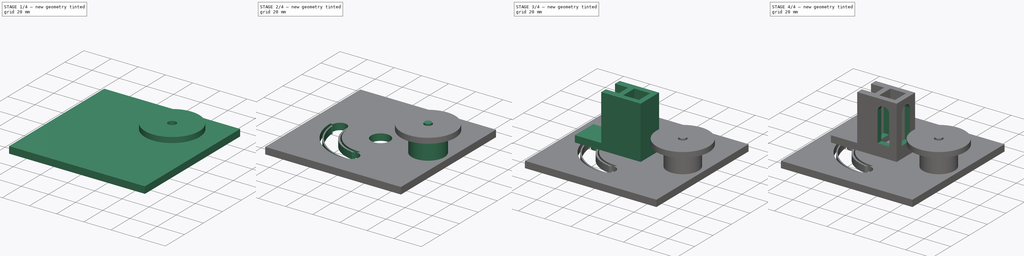
[diagram: build sequence overview — one tinted view per stage of 4, left to right]
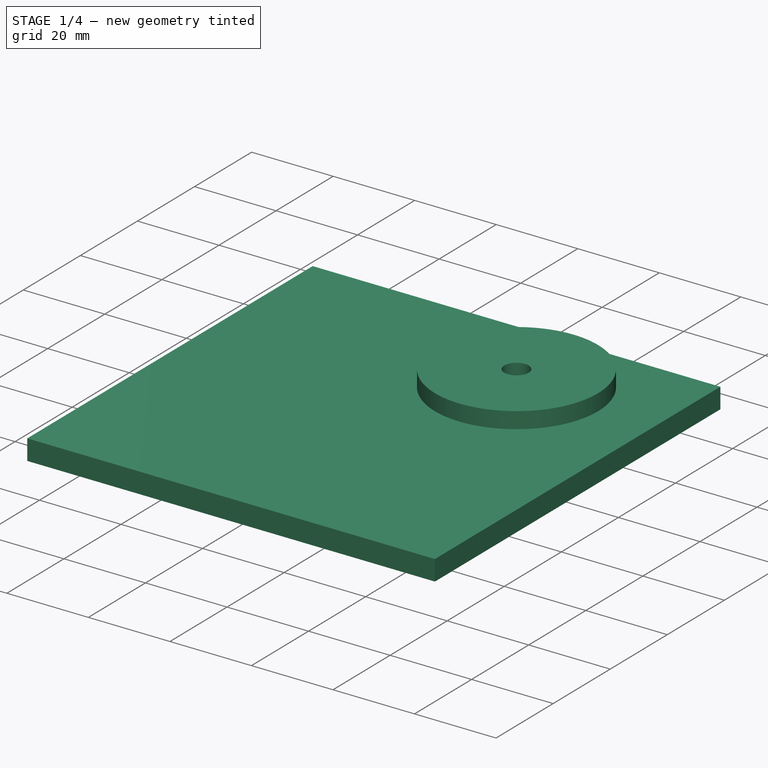
[diagram: stage 1 of 4 — iso view after this stage's code; geometry added in this stage tinted green]
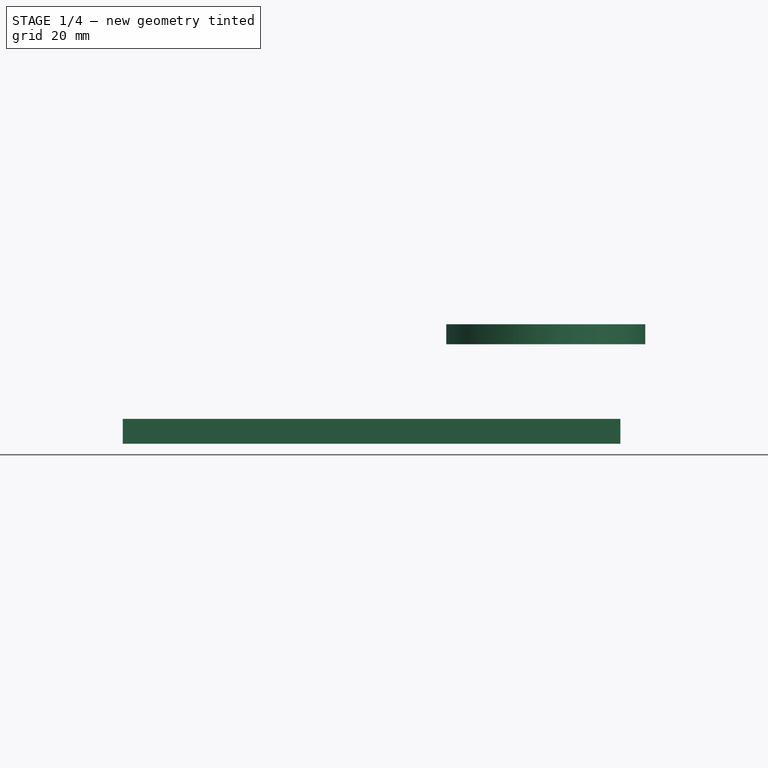
[diagram: stage 1 of 4 — front view after this stage's code; geometry added in this stage tinted green]
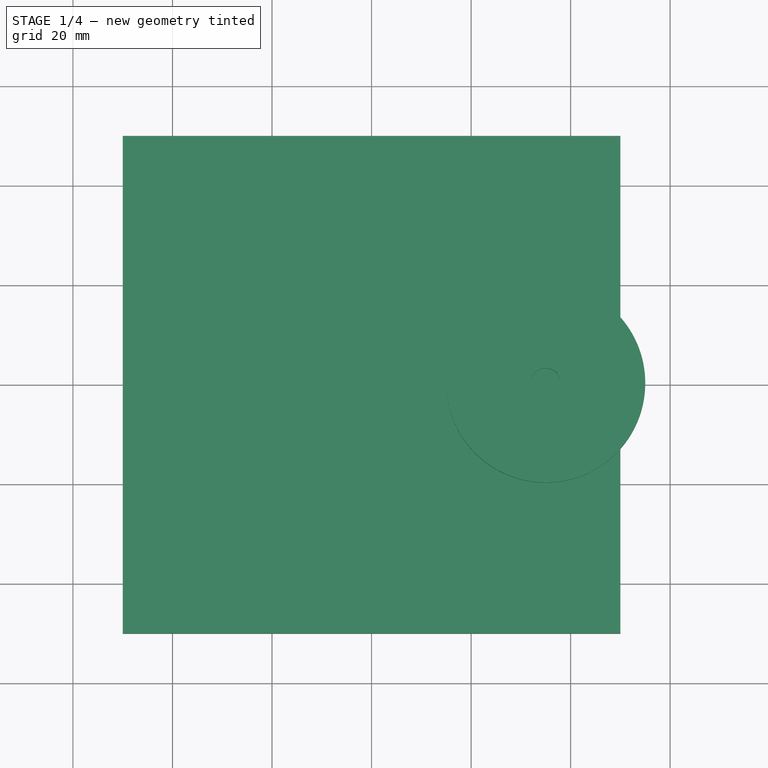
[diagram: stage 1 of 4 — top view after this stage's code; geometry added in this stage tinted green]
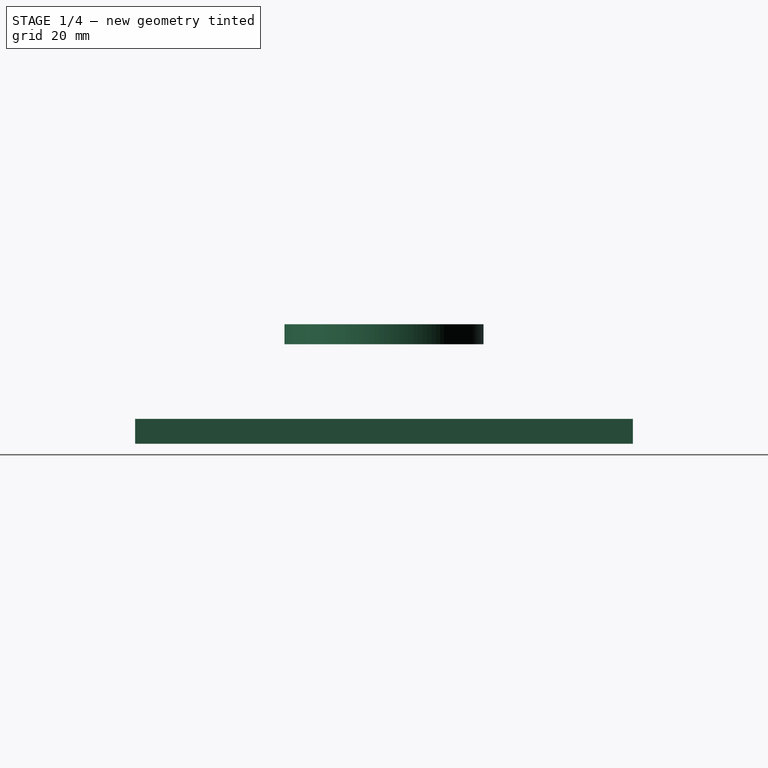
[diagram: stage 1 of 4 — right view after this stage's code; geometry added in this stage tinted green]
FCSTD DOCUMENT  (FreeCAD 0.17R13541 (Git))
Label: Скетч_0.5.2_зацеп
License: All rights reserved
LicenseURL: http://en.wikipedia.org/wiki/All_rights_reserved
objects: Sketcher::SketchObject×11, PartDesign::Pad×7, PartDesign::Pocket×3, PartDesign::Body×3, PartDesign::ShapeBinder×2
note: 36 computed .brp shape members not serialized (recipe doc carries the construction recipe); baked Part::Feature solids carry a one-line shape summary decoded from their .brp

FEATURE [Sketcher::SketchObject] Sketch
  MapMode = 5
  Support = -> [XY_Plane]
  sketch-geometry (4):
    g0: LineSegment StartX=-50 StartY=50 StartZ=0 EndX=50 EndY=50 EndZ=0
    g1: LineSegment StartX=50 StartY=50 StartZ=0 EndX=50 EndY=-50 EndZ=0
    g2: LineSegment StartX=50 StartY=-50 StartZ=0 EndX=-50 EndY=-50 EndZ=0
    g3: LineSegment StartX=-50 StartY=-50 StartZ=0 EndX=-50 EndY=50 EndZ=0
  constraints (12):
    c: Coincident(g0,g1)
    c: Coincident(g1,g2)
    c: Coincident(g2,g3)
    c: Coincident(g3,g0)
    c: Horizontal(g0)
    c: Horizontal(g2)
    c: Vertical(g1)
    c: Vertical(g3)
    c: Symmetric(g1,g2,g-2)
    c: Symmetric(g1,g0,g-1)
    c: DistanceY(g1,g0) = 100
    c: Equal(g1,g2)
FEATURE [PartDesign::Pad] Pad
  Length = 5
  Length2 = 100
  Profile = -> Sketch
  Type = 0
FEATURE [PartDesign::Body] Body  label="PLT"
  Group = -> [Sketch,Pad,Sketch001,Pocket,Sketch007,Pad004,Sketch008,Pad005]
  Origin = -> Origin
  Tip = -> Pad005
FEATURE [PartDesign::ShapeBinder] CopyPad005
FEATURE [Sketcher::SketchObject] Sketch009
  MapMode = 5
  Placement = pos=(0,0,20) rot=(0,0,1;0rad)
  Support = -> [CopyPad005]
  sketch-geometry (2):
    g0: Circle CenterX=35 CenterY=0 CenterZ=0 NormalX=0 NormalY=0 NormalZ=1 AngleXU=0 Radius=3
    g1: Circle CenterX=35 CenterY=0 CenterZ=0 NormalX=0 NormalY=0 NormalZ=1 AngleXU=0 Radius=20
  constraints (5):
    c: PointOnObject(g0,g-1)
    c: Radius(g1) = 20
    c: Coincident(g0,g1)
    c: DistanceX(g-1,g0) = 35
    c: Radius(g0) = 3
FEATURE [PartDesign::Pad] Pad006
  Length = 4
  Length2 = 100
  Profile = -> Sketch009
  Type = 0
FEATURE [Sketcher::SketchObject] Sketch010
  ExternalGeometry = -> [Pad006]
  MapMode = 5
  Placement = pos=(0,0,24) rot=(0,0,1;0rad)
  Support = -> [Pad006]
  sketch-geometry (4):
    g0: LineSegment StartX=15.6882 StartY=5.20149 StartZ=0 EndX=19.6423 EndY=3.96993 EndZ=0
    g1: LineSegment StartX=19.6423 StartY=3.96993 StartZ=0 EndX=20.1042 EndY=5.45299 EndZ=0
    g2: LineSegment StartX=20.1042 StartY=5.45299 StartZ=0 EndX=16.1501 EndY=6.68454 EndZ=0
    g3: LineSegment StartX=16.1501 StartY=6.68454 StartZ=0 EndX=15.6882 EndY=5.20149 EndZ=0
  constraints (9):
    c: PointOnObject(g0,g-3)
    c: Coincident(g0,g1)
    c: Coincident(g1,g2)
    c: PointOnObject(g2,g-3)
    c: Coincident(g2,g3)
    c: Coincident(g3,g0)
    c: Perpendicular(g0,g1)
    c: Perpendicular(g2,g1)
    c: Perpendicular(g3,g0)
FEATURE [PartDesign::Body] Body004
  Group = -> [CopyPad005,Sketch009,Pad006,Sketch010]
  Origin = -> Origin004
  Tip = -> Pad006
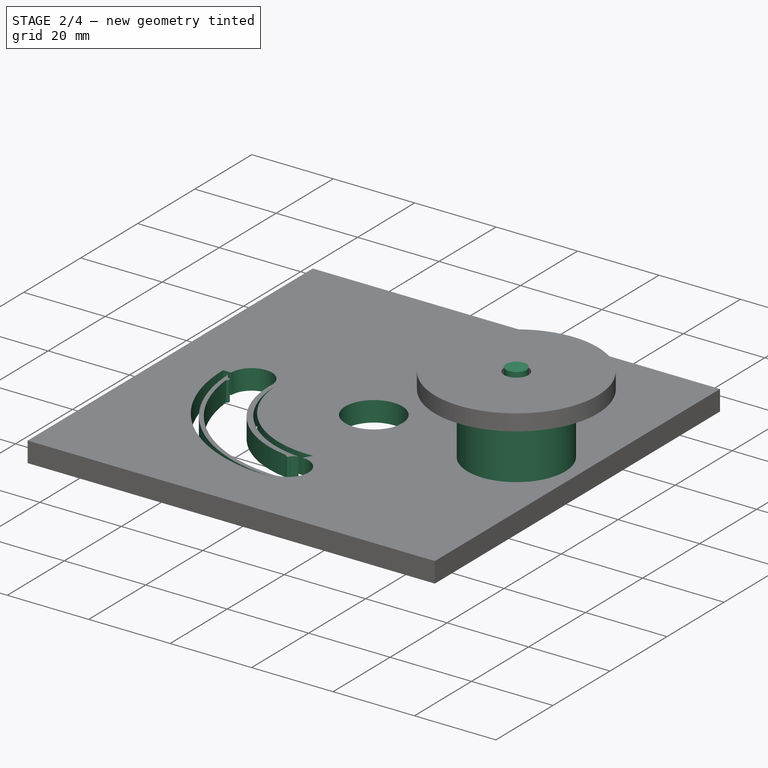
[diagram: stage 2 of 4 — iso view after this stage's code; geometry added in this stage tinted green]
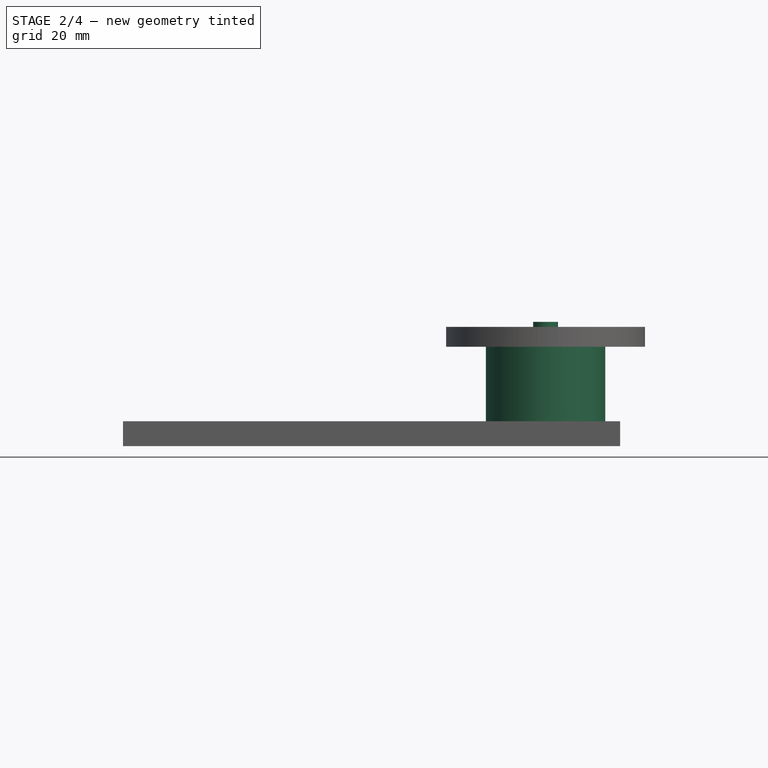
[diagram: stage 2 of 4 — front view after this stage's code; geometry added in this stage tinted green]
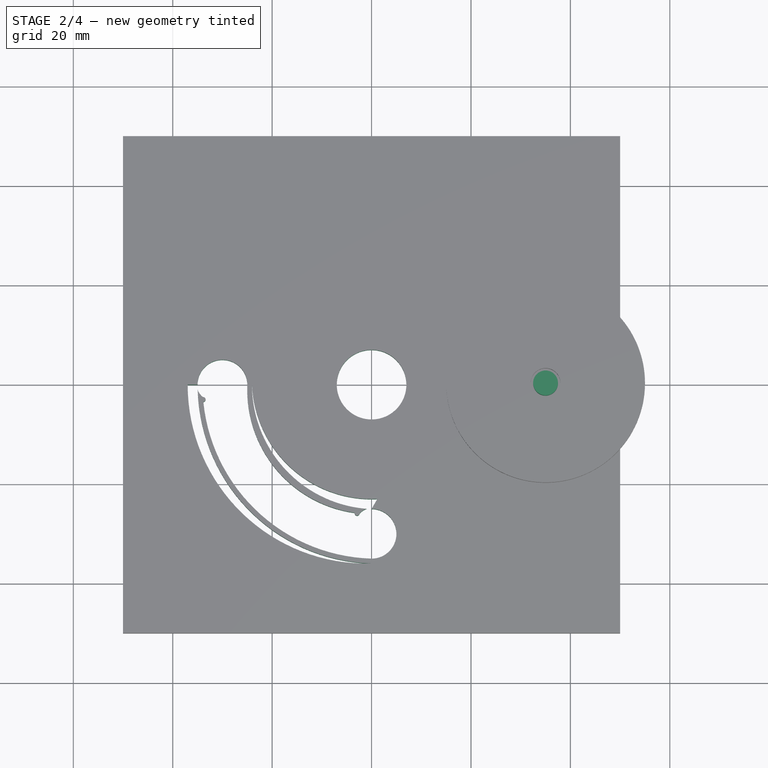
[diagram: stage 2 of 4 — top view after this stage's code; geometry added in this stage tinted green]
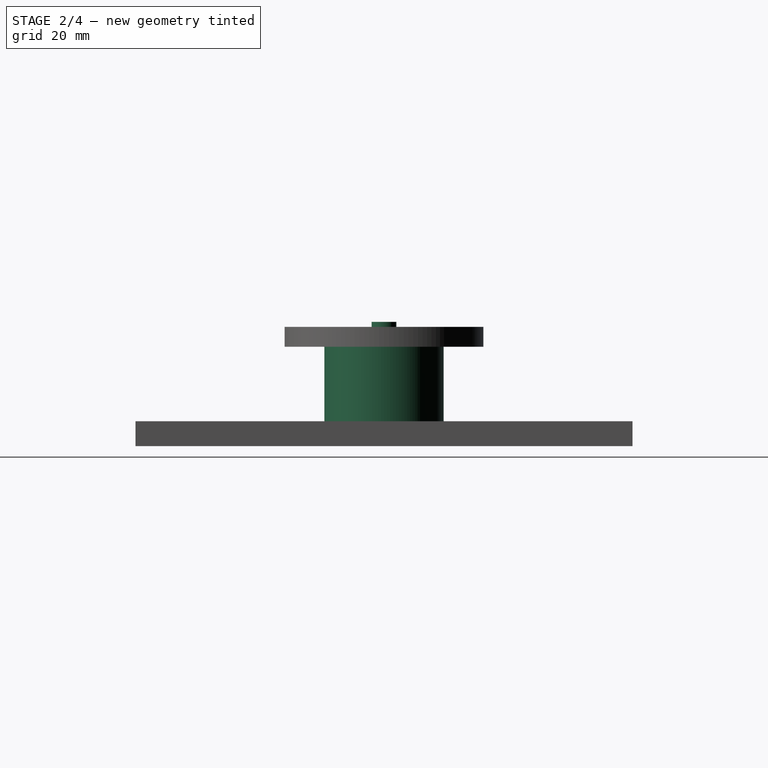
[diagram: stage 2 of 4 — right view after this stage's code; geometry added in this stage tinted green]
FEATURE [Sketcher::SketchObject] Sketch001
  MapMode = 5
  Placement = pos=(0,0,5) rot=(0,0,1;0rad)
  Support = -> [Pad]
  sketch-geometry (21):
    g0: Circle CenterX=0 CenterY=0 CenterZ=0 NormalX=0 NormalY=0 NormalZ=1 AngleXU=0 Radius=7
    g1: ArcOfCircle CenterX=-30 CenterY=0 CenterZ=0 NormalX=0 NormalY=0 NormalZ=1 AngleXU=0 Radius=5 StartAngle=0 EndAngle=3.14159
    g2: ArcOfCircle [constr] CenterX=0 CenterY=0 CenterZ=0 NormalX=0 NormalY=0 NormalZ=1 AngleXU=0 Radius=25 StartAngle=3.14159 EndAngle=4.71239
    g3: ArcOfCircle CenterX=0 CenterY=-30 CenterZ=0 NormalX=0 NormalY=0 NormalZ=1 AngleXU=0 Radius=5 StartAngle=4.71239 EndAngle=7.85398
    g4: ArcOfCircle CenterX=1 CenterY=0 CenterZ=0 NormalX=0 NormalY=0 NormalZ=1 AngleXU=0 Radius=35.0143 StartAngle=3.24101 EndAngle=4.68383
    g5: ArcOfCircle CenterX=-33.891 CenterY=-2.97759 CenterZ=0 NormalX=0 NormalY=0 NormalZ=1 AngleXU=0 Radius=0.5 StartAngle=4.8118 EndAngle=7.95339
    g6: LineSegment [constr] StartX=-33.8414 StartY=-3.47512 StartZ=0 EndX=-33.9407 EndY=-2.48006 EndZ=0
    g7: Circle [constr] CenterX=-30 CenterY=0 CenterZ=0 NormalX=0 NormalY=0 NormalZ=1 AngleXU=0 Radius=5
    g8: ArcOfCircle CenterX=1 CenterY=0 CenterZ=0 NormalX=0 NormalY=0 NormalZ=1 AngleXU=0 Radius=36 StartAngle=3.16937 EndAngle=4.68461
    g9: LineSegment StartX=-37 StartY=0 StartZ=0 EndX=-35 EndY=0 EndZ=0
    g10: ArcOfCircle CenterX=-1 CenterY=0 CenterZ=0 NormalX=0 NormalY=0 NormalZ=1 AngleXU=0 Radius=36 StartAngle=3.14159 EndAngle=4.74017
    g11: ArcOfCircle CenterX=-2.90563 CenterY=-25.8557 CenterZ=0 NormalX=0 NormalY=0 NormalZ=1 AngleXU=0 Radius=0.5 StartAngle=3.00524 EndAngle=6.14683
    g12: LineSegment [constr] StartX=-3.40099 StartY=-25.7878 StartZ=0 EndX=-2.41027 EndY=-25.9237 EndZ=0
    g13: Circle [constr] CenterX=0 CenterY=-30 CenterZ=0 NormalX=0 NormalY=0 NormalZ=1 AngleXU=0 Radius=5
    g14: ArcOfCircle CenterX=0 CenterY=-1 CenterZ=0 NormalX=0 NormalY=0 NormalZ=1 AngleXU=0 Radius=25.02 StartAngle=3.10161 EndAngle=4.57604
    g15: ArcOfCircle [constr] CenterX=0 CenterY=0 CenterZ=0 NormalX=0 NormalY=0 NormalZ=1 AngleXU=0 Radius=35 StartAngle=3.14159 EndAngle=4.71239
    g16: ArcOfCircle CenterX=1 CenterY=0 CenterZ=0 NormalX=0 NormalY=0 NormalZ=1 AngleXU=0 Radius=25.0599 StartAngle=3.14159 EndAngle=4.6325
    g17: ArcOfCircle CenterX=0 CenterY=1.05537 CenterZ=0 NormalX=0 NormalY=0 NormalZ=1 AngleXU=0 Radius=24.0831 StartAngle=3.18543 EndAngle=4.76035
    g18: LineSegment StartX=1.1547 StartY=-23 StartZ=0 EndX=0 EndY=-25 EndZ=0
    g19: ArcOfCircle CenterX=-32 CenterY=0 CenterZ=0 NormalX=0 NormalY=0 NormalZ=1 AngleXU=0 Radius=3.1491 StartAngle=3.46474 EndAngle=4.04841
    g20: ArcOfCircle CenterX=0 CenterY=-28 CenterZ=0 NormalX=0 NormalY=0 NormalZ=1 AngleXU=0 Radius=3.18127 StartAngle=1.89056 EndAngle=2.43049
  constraints (67):
    c: Radius(g0) = 7
    c: PointOnObject(g1,g-1)
    c: PointOnObject(g1,g-1)
    c: PointOnObject(g1,g-1)
    c: Coincident(g2,g-1)
    c: Coincident(g2,g1)
    c: Equal(g3,g1)
    c: Radius(g1) = 5
    c: PointOnObject(g3,g-2)
    c: PointOnObject(g3,g-2)
    c: Radius(g2) = 25
    c: Coincident(g0,g-1)
    c: Coincident(g4,g3)
    c: PointOnObject(g4,g-1)
    c: DistanceX(g-1,g4) = 1
    c: Coincident(g6,g5)
    c: PointOnObject(g5,g6)
    c: Radius(g5) = 0.5
    c: Coincident(g7,g1)
    c: PointOnObject(g1,g7)
    c: Coincident(g8,g4)
    c: PointOnObject(g9,g-1)
    c: PointOnObject(g10,g-1)
    c: Coincident(g10,g9)
    c: DistanceX(g10,g-1) = 1
    c: DistanceY(g8,g1) = 1
    c: DistanceX(g9,g1) = 2
    c: Coincident(g8,g10)
    c: PointOnObject(g8,g-2)
    c: Coincident(g9,g1)
    c: PointOnObject(g3,g-2)
    c: Coincident(g2,g3)
    c: Coincident(g12,g11)
    c: PointOnObject(g11,g12)
    c: Equal(g11,g5)
    c: Coincident(g11,g12)
    c: PointOnObject(g16,g2)
    c: Coincident(g13,g3)
    c: PointOnObject(g2,g13)
    c: PointOnObject(g14,g-2)
    c: Coincident(g14,g11)
    c: Coincident(g14,g1)
    c: DistanceY(g14,g-1) = 1
    c: DistanceX(g16,g2) = 1
    c: Coincident(g15,g-1)
    c: Coincident(g15,g3)
    c: PointOnObject(g15,g-1)
    c: PointOnObject(g16,g-1)
    c: PointOnObject(g17,g-2)
    c: Coincident(g17,g16)
    c: Coincident(g18,g17)
    c: Coincident(g18,g2)
    c: DistanceY(g2,g17) = 2
    c: Coincident(g16,g4)
    c: Angle(g18,g-2) = 0.523599
    c: Coincident(g5,g6)
    c: Coincident(g4,g5)
    c: Coincident(g19,g8)
    c: Coincident(g19,g5)
    c: Tangent(g4,g6)
    c: PointOnObject(g19,g-1)
    c: DistanceX(g19,g1) = 2
    c: Tangent(g12,g14)
    c: PointOnObject(g20,g-2)
    c: Coincident(g20,g11)
    c: Coincident(g20,g16)
    c: DistanceY(g3,g20) = 2
FEATURE [PartDesign::Pocket] Pocket
  BaseFeature = -> Pad
  Length = 5
  Length2 = 100
  Profile = -> Sketch001
  Type = 0
FEATURE [PartDesign::Body] Body003  label="DER"
  Group = -> [CopyPocket,Sketch002,Pad001,Sketch003,Pad002,Sketch004,Pad003,Sketch005,Pocket001,Sketch006,Pocket002]
  Origin = -> Origin003
  Tip = -> Pocket002
FEATURE [Sketcher::SketchObject] Sketch007
  ExternalGeometry = -> [Pocket]
  MapMode = 5
  Placement = pos=(0,0,5) rot=(0,0,1;0rad)
  Support = -> [Pocket]
  sketch-geometry (3):
    g0: Circle [constr] CenterX=35 CenterY=0 CenterZ=0 NormalX=0 NormalY=0 NormalZ=1 AngleXU=0 Radius=20
    g1: ArcOfCircle [constr] CenterX=15 CenterY=0 CenterZ=0 NormalX=0 NormalY=0 NormalZ=1 AngleXU=0 Radius=3 StartAngle=4.78746 EndAngle=7.77891
    g2: Circle CenterX=35 CenterY=0 CenterZ=0 NormalX=0 NormalY=0 NormalZ=1 AngleXU=0 Radius=12
  constraints (10):
    c: PointOnObject(g0,g-1)
    c: PointOnObject(g1,g0)
    c: PointOnObject(g1,g0)
    c: PointOnObject(g1,g0)
    c: Radius(g0) = 20
    c: Radius(g1) = 3
    c: DistanceX(g0,g-3) = 15
    c: Coincident(g2,g0)
    c: Radius(g2) = 12
    c: PointOnObject(g1,g-1)
FEATURE [PartDesign::Pad] Pad004
  BaseFeature = -> Pocket
  Length = 15
  Length2 = 100
  Profile = -> Sketch007
  Type = 0
FEATURE [Sketcher::SketchObject] Sketch008
  ExternalGeometry = -> [Pad004]
  MapMode = 5
  Placement = pos=(0,0,20) rot=(0,0,1;0rad)
  Support = -> [Pad004]
  sketch-geometry (1):
    g0: Circle CenterX=35 CenterY=0 CenterZ=0 NormalX=0 NormalY=0 NormalZ=1 AngleXU=0 Radius=2.5
  constraints (3):
    c: PointOnObject(g0,g-1)
    c: DistanceX(g0,g-3) = 15
    c: Radius(g0) = 2.5
FEATURE [PartDesign::Pad] Pad005
  BaseFeature = -> Pad004
  Length = 5
  Length2 = 100
  Profile = -> Sketch008
  Type = 0
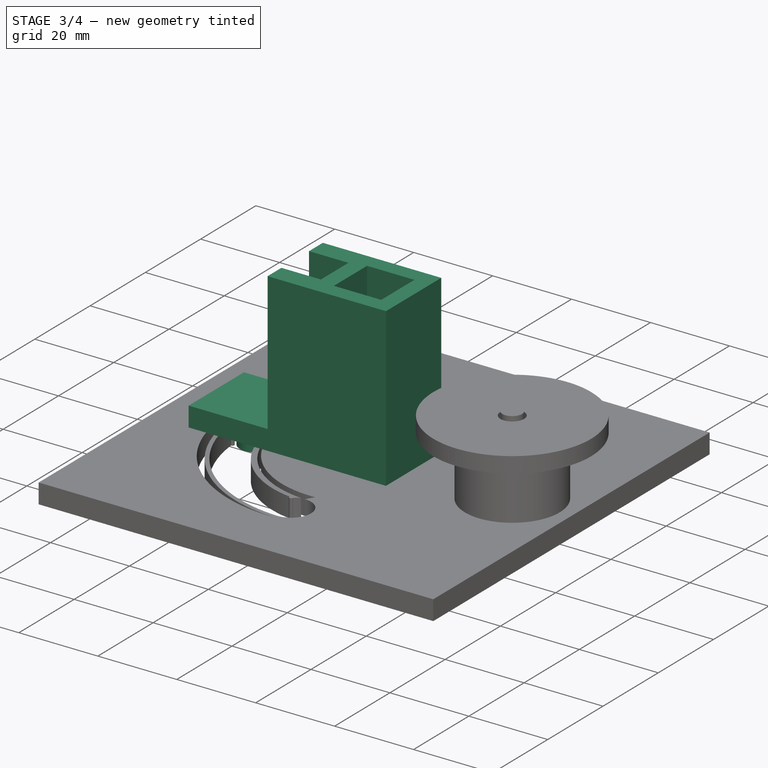
[diagram: stage 3 of 4 — iso view after this stage's code; geometry added in this stage tinted green]
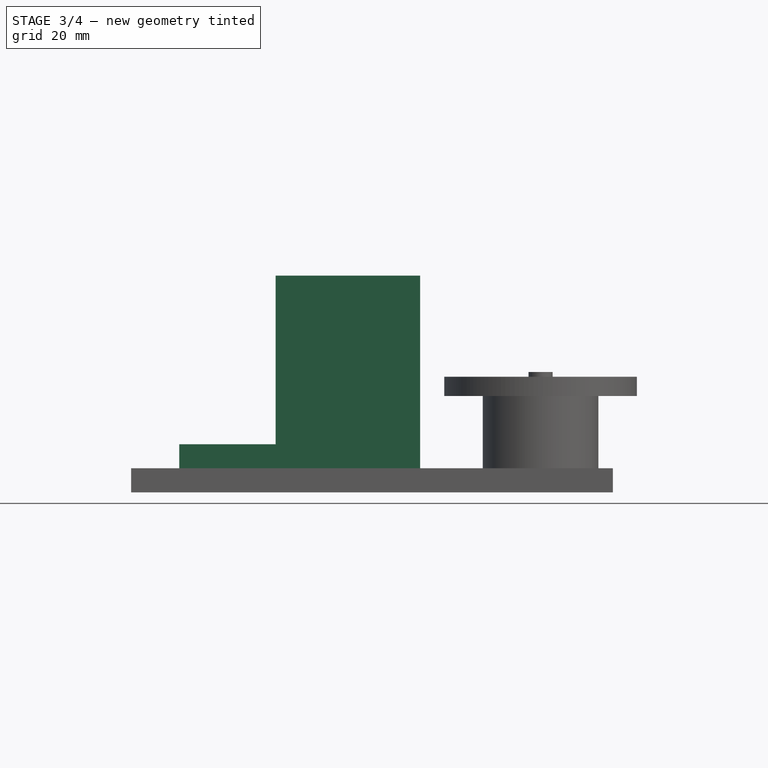
[diagram: stage 3 of 4 — front view after this stage's code; geometry added in this stage tinted green]
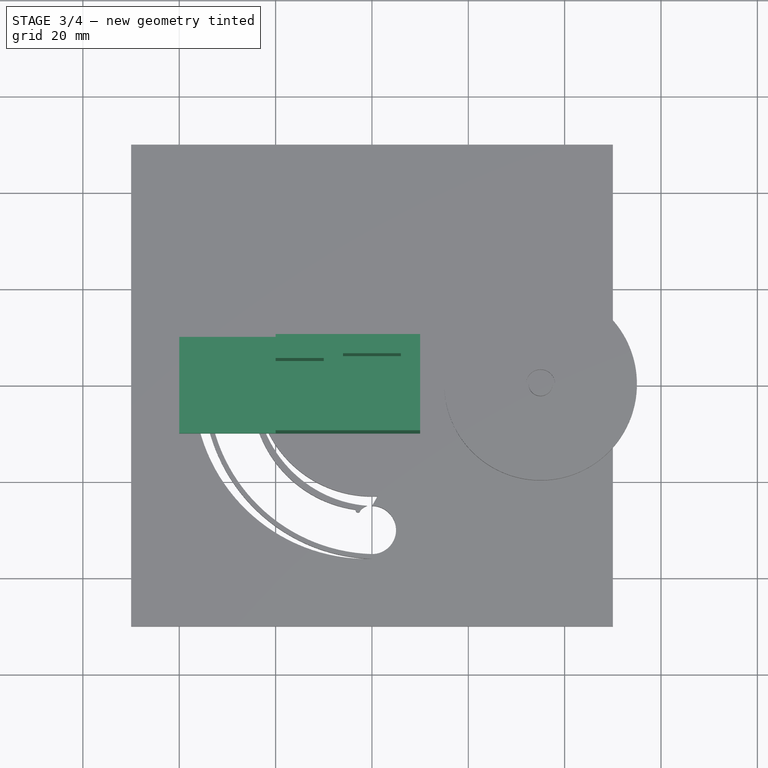
[diagram: stage 3 of 4 — top view after this stage's code; geometry added in this stage tinted green]
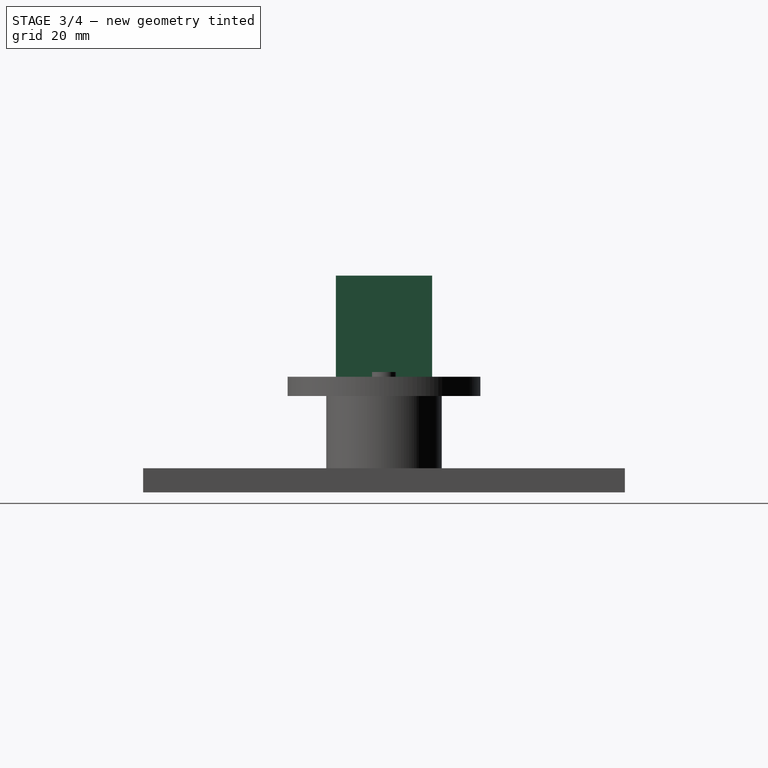
[diagram: stage 3 of 4 — right view after this stage's code; geometry added in this stage tinted green]
FEATURE [PartDesign::ShapeBinder] CopyPocket
FEATURE [Sketcher::SketchObject] Sketch002
  MapMode = 5
  Placement = pos=(0,0,5) rot=(0,0,1;0rad)
  Support = -> [CopyPocket]
  sketch-geometry (4):
    g0: LineSegment StartX=10 StartY=10 StartZ=0 EndX=-40 EndY=10 EndZ=0
    g1: LineSegment StartX=-40 StartY=10 StartZ=0 EndX=-40 EndY=-10 EndZ=0
    g2: LineSegment StartX=-40 StartY=-10 StartZ=0 EndX=10 EndY=-10 EndZ=0
    g3: LineSegment StartX=10 StartY=-10 StartZ=0 EndX=10 EndY=10 EndZ=0
  constraints (12):
    c: Coincident(g0,g1)
    c: Coincident(g1,g2)
    c: Coincident(g2,g3)
    c: Coincident(g3,g0)
    c: Horizontal(g0)
    c: Horizontal(g2)
    c: Vertical(g1)
    c: Vertical(g3)
    c: Symmetric(g2,g0,g-1)
    c: DistanceY(g2,g0) = 20
    c: DistanceX(g1,g2) = 50
    c: DistanceX(g-1,g2) = 10
FEATURE [PartDesign::Pad] Pad001
  Length = 5
  Length2 = 100
  Profile = -> Sketch002
  Type = 0
FEATURE [Sketcher::SketchObject] Sketch003
  MapMode = 5
  Placement = pos=(0,0,5) rot=(1,0,0;3.14159rad)
  Support = -> [Pad001]
  sketch-geometry (2):
    g0: Circle CenterX=0 CenterY=0 CenterZ=0 NormalX=0 NormalY=0 NormalZ=1 AngleXU=0 Radius=6
    g1: Circle CenterX=-30 CenterY=0 CenterZ=0 NormalX=0 NormalY=0 NormalZ=1 AngleXU=0 Radius=4
  constraints (5):
    c: Coincident(g0,g-1)
    c: PointOnObject(g1,g-1)
    c: Radius(g1) = 4
    c: Radius(g0) = 6
    c: DistanceX(g1,g-1) = 30
FEATURE [PartDesign::Pad] Pad002
  BaseFeature = -> Pad001
  Length = 5
  Length2 = 100
  Profile = -> Sketch003
  Type = 0
FEATURE [Sketcher::SketchObject] Sketch004
  ExternalGeometry = -> [Pad002]
  MapMode = 5
  Placement = pos=(0,0,10) rot=(0,0,1;0rad)
  Support = -> [Pad002]
  sketch-geometry (12):
    g0: LineSegment StartX=10 StartY=10 StartZ=0 EndX=-20 EndY=10 EndZ=0
    g1: LineSegment StartX=-20 StartY=-10 StartZ=0 EndX=10 EndY=-10 EndZ=0
    g2: LineSegment StartX=10 StartY=-10 StartZ=0 EndX=10 EndY=10 EndZ=0
    g3: LineSegment StartX=-6 StartY=6 StartZ=0 EndX=6 EndY=6 EndZ=0
    g4: LineSegment StartX=6 StartY=6 StartZ=0 EndX=6 EndY=-6 EndZ=0
    g5: LineSegment StartX=6 StartY=-6 StartZ=0 EndX=-6 EndY=-6 EndZ=0
    g6: LineSegment StartX=-6 StartY=-6 StartZ=0 EndX=-6 EndY=6 EndZ=0
    g7: LineSegment StartX=-20 StartY=-10 StartZ=0 EndX=-20 EndY=-5 EndZ=0
    g8: LineSegment StartX=-20 StartY=-5 StartZ=0 EndX=-10 EndY=-5 EndZ=0
    g9: LineSegment StartX=-10 StartY=-5 StartZ=0 EndX=-10 EndY=5 EndZ=0
    g10: LineSegment StartX=-10 StartY=5 StartZ=0 EndX=-20 EndY=5 EndZ=0
    g11: LineSegment StartX=-20 StartY=5 StartZ=0 EndX=-20 EndY=10 EndZ=0
  constraints (35):
    c: Coincident(g1,g2)
    c: Coincident(g2,g0)
    c: Horizontal(g0)
    c: Horizontal(g1)
    c: Vertical(g2)
    c: Coincident(g0,g-4)
    c: PointOnObject(g1,g-5)
    c: Coincident(g3,g4)
    c: Coincident(g4,g5)
    c: Coincident(g5,g6)
    c: Coincident(g6,g3)
    c: Horizontal(g3)
    c: Horizontal(g5)
    c: Vertical(g4)
    c: Vertical(g6)
    c: Symmetric(g4,g5,g-2)
    c: Symmetric(g3,g4,g-1)
    c: Equal(g4,g5)
    c: DistanceX(g5,g4) = 12
    c: Equal(g1,g0)
    c: Coincident(g7,g8)
    c: Horizontal(g8)
    c: Coincident(g8,g9)
    c: Vertical(g9)
    c: Coincident(g9,g10)
    c: Horizontal(g10)
    c: Coincident(g10,g11)
    c: Vertical(g11)
    c: Coincident(g11,g0)
    c: Vertical(g7)
    c: Symmetric(g9,g8,g-1)
    c: DistanceX(g7,g8) = 10
    c: DistanceX(g9,g3) = 4  'stenka'
    c: Coincident(g7,g1)
    c: DistanceY(g1,g7) = 5
FEATURE [PartDesign::Pad] Pad003
  BaseFeature = -> Pad002
  Length = 35
  Length2 = 100
  Profile = -> Sketch004
  Type = 0
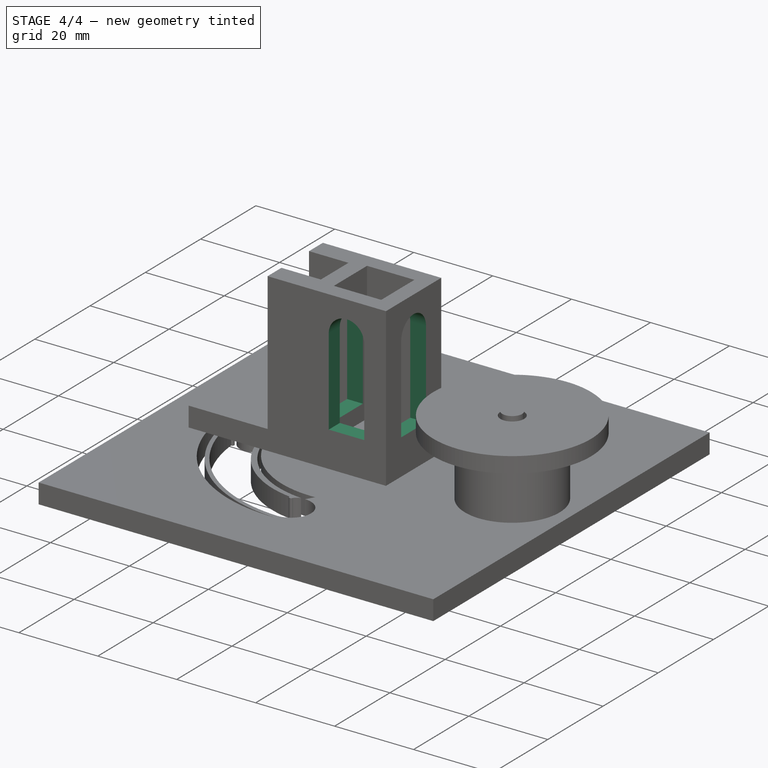
[diagram: stage 4 of 4 — iso view after this stage's code; geometry added in this stage tinted green]
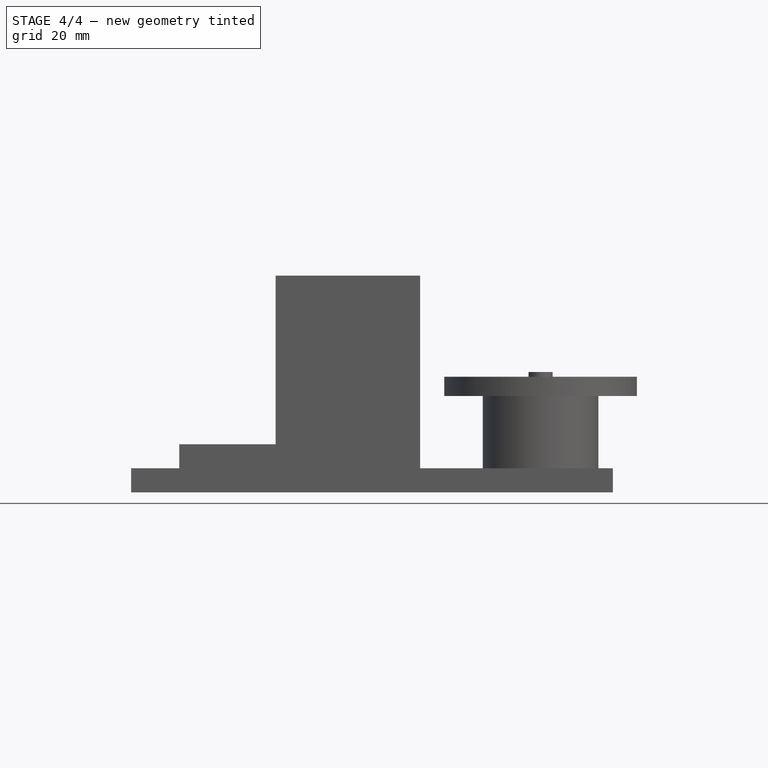
[diagram: stage 4 of 4 — front view after this stage's code; geometry added in this stage tinted green]
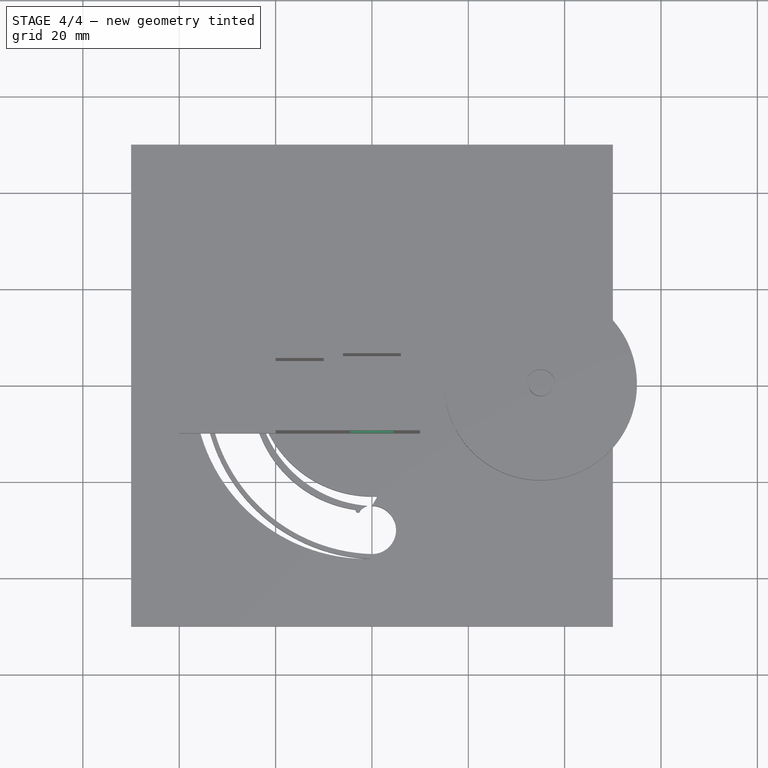
[diagram: stage 4 of 4 — top view after this stage's code; geometry added in this stage tinted green]
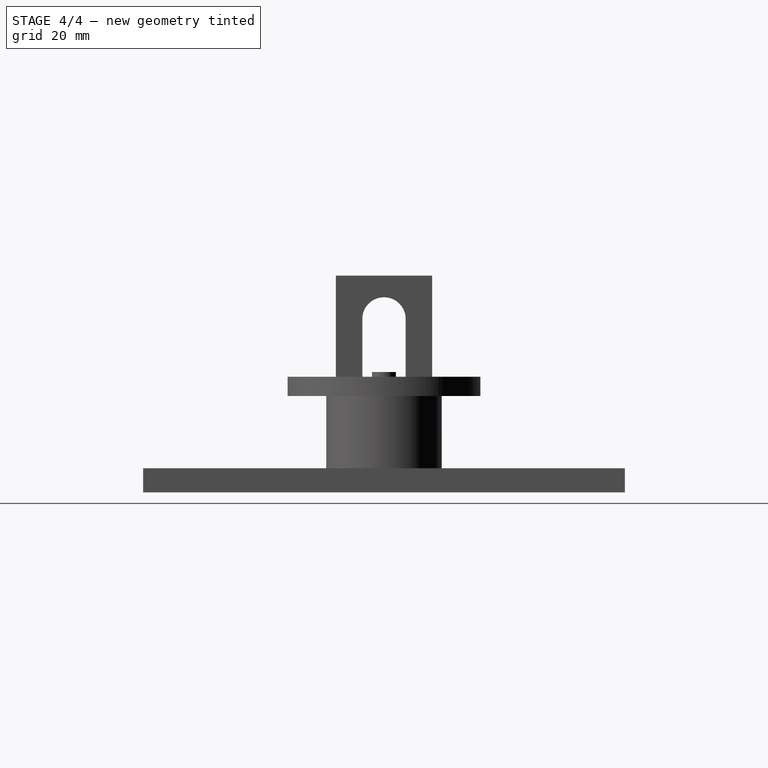
[diagram: stage 4 of 4 — right view after this stage's code; geometry added in this stage tinted green]
FEATURE [Sketcher::SketchObject] Sketch005
  ExternalGeometry = -> [Pad003]
  MapMode = 5
  Placement = pos=(10,0,0) rot=(0.57735,0.57735,0.57735;2.0944rad)
  Support = -> [Pad003]
  sketch-geometry (4):
    g0: LineSegment StartX=4.5 StartY=14 StartZ=0 EndX=-4.5 EndY=14 EndZ=0
    g1: LineSegment StartX=-4.5 StartY=14 StartZ=0 EndX=-4.5 EndY=36 EndZ=0
    g2: LineSegment StartX=4.5 StartY=36 StartZ=0 EndX=4.5 EndY=14 EndZ=0
    g3: ArcOfCircle CenterX=0 CenterY=36 CenterZ=0 NormalX=0 NormalY=0 NormalZ=1 AngleXU=0 Radius=4.5 StartAngle=0 EndAngle=3.14159
  constraints (12):
    c: Horizontal(g0)
    c: Coincident(g0,g1)
    c: Vertical(g1)
    c: Coincident(g2,g0)
    c: Vertical(g2)
    c: DistanceY(g-3,g0) = 4
    c: Symmetric(g1,g2,g-2)
    c: DistanceX(g0,g0) = 9
    c: Coincident(g3,g1)
    c: Coincident(g3,g2)
    c: Horizontal(g3,g1)
    c: DistanceY(g3,g-4) = 9
FEATURE [PartDesign::Pocket] Pocket001
  BaseFeature = -> Pad003
  Length = 20
  Length2 = 100
  Profile = -> Sketch005
  Type = 0
FEATURE [Sketcher::SketchObject] Sketch006
  ExternalGeometry = -> [Pocket001]
  MapMode = 5
  Placement = pos=(0,-10,0) rot=(1,0,0;1.5708rad)
  Support = -> [Pocket001]
  sketch-geometry (4):
    g0: LineSegment StartX=-4.5 StartY=14 StartZ=0 EndX=4.5 EndY=14 EndZ=0
    g1: LineSegment StartX=4.5 StartY=14 StartZ=0 EndX=4.5 EndY=36 EndZ=0
    g2: LineSegment StartX=-4.5 StartY=36 StartZ=0 EndX=-4.5 EndY=14 EndZ=0
    g3: ArcOfCircle CenterX=0 CenterY=36 CenterZ=0 NormalX=0 NormalY=0 NormalZ=1 AngleXU=0 Radius=4.5 StartAngle=0 EndAngle=3.14159
  constraints (13):
    c: Coincident(g0,g1)
    c: Coincident(g2,g0)
    c: Vertical(g2)
    c: Horizontal(g0)
    c: Vertical(g1)
    c: PointOnObject(g3,g-2)
    c: Coincident(g3,g2)
    c: Coincident(g3,g1)
    c: Horizontal(g3,g2)
    c: Horizontal(g2,g1)
    c: DistanceY(g-4,g0) = 4
    c: DistanceY(g3,g-4) = 9
    c: DistanceX(g0,g0) = 9
FEATURE [PartDesign::Pocket] Pocket002
  BaseFeature = -> Pocket001
  Length = 4
  Length2 = 100
  Profile = -> Sketch006
  Type = 0
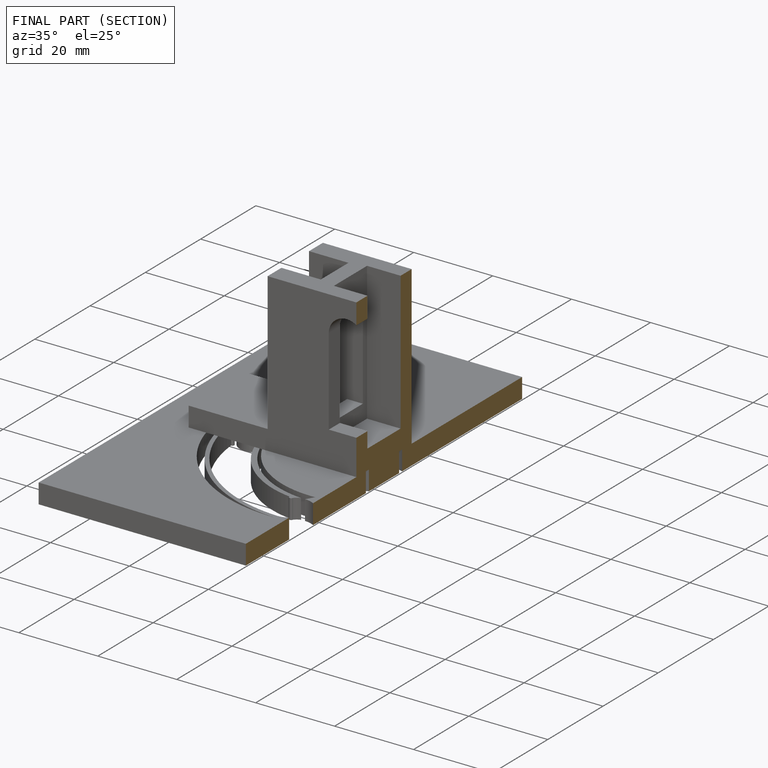
[diagram: finished part — half-section view (interior)]
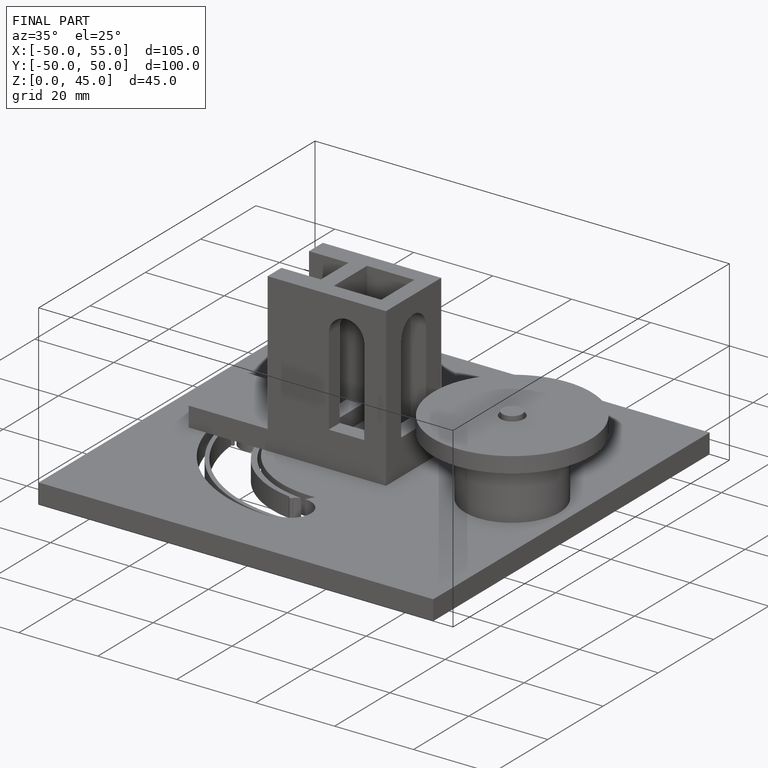
[diagram: finished part — iso view with bounding-box wireframe]
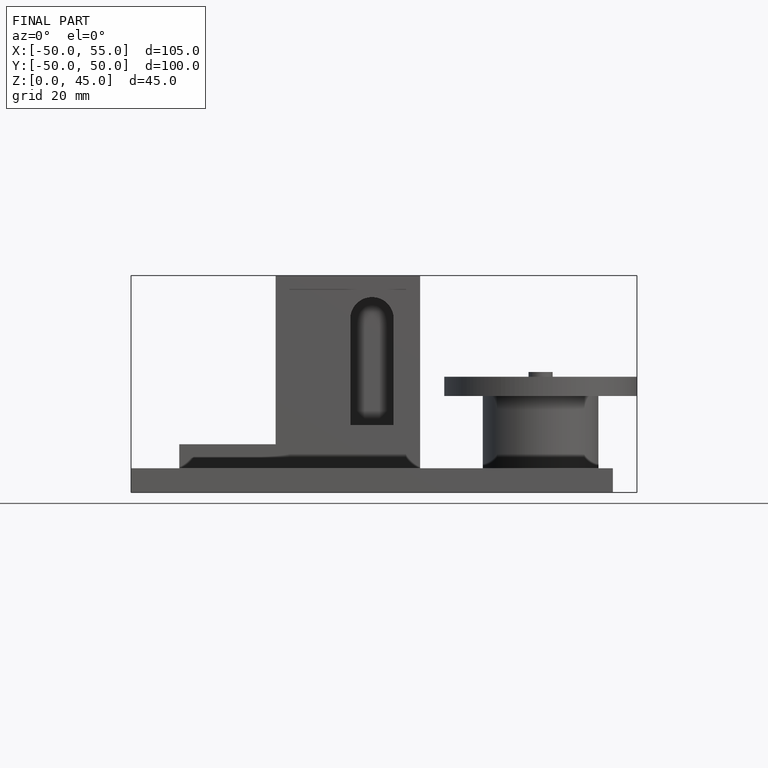
[diagram: finished part — front view with bounding-box wireframe]
